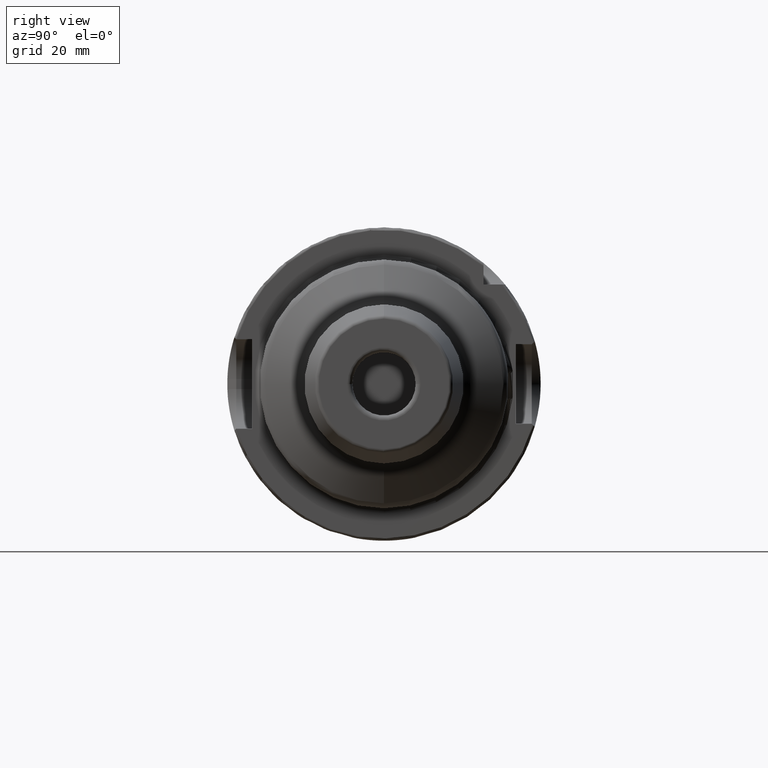
[diagram: clean part render]
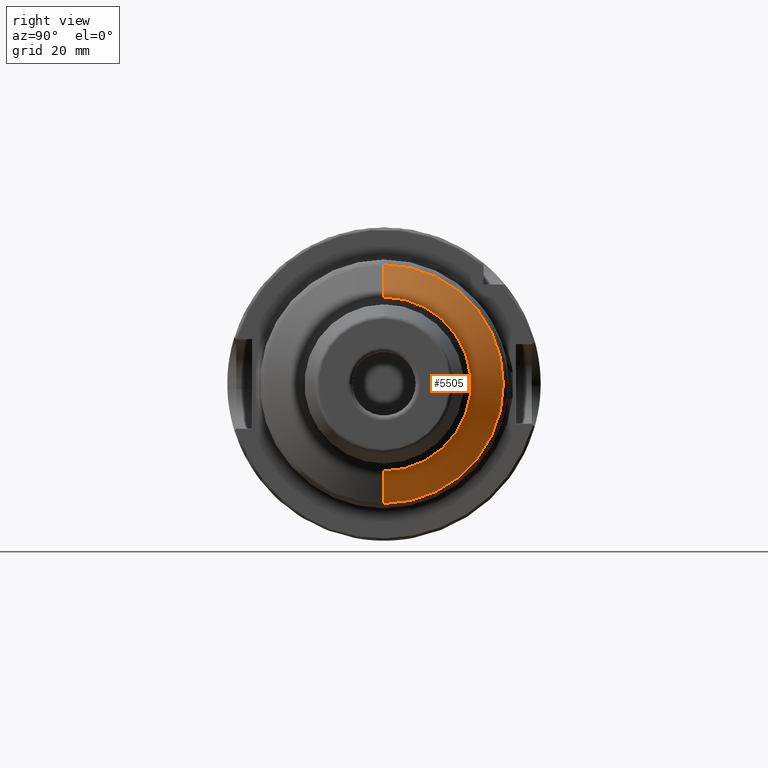
[diagram: same view with one face highlighted and labeled with its STEP entity id]
A machine part, right view. The second image highlights one B-rep face of the part: STEP entity #5505.
In plain terms, the highlighted conical surface has half-angle 60 deg.
Its self-contained STEP definition (entity closure, byte-faithful):
#2259=CARTESIAN_POINT('',(4.038119784648E1,0.E0,0.E0));
#2260=DIRECTION('',(-1.E0,0.E0,0.E0));
#2261=DIRECTION('',(0.E0,0.E0,1.E0));
#2262=AXIS2_PLACEMENT_3D('',#2259,#2260,#2261);
#2264=CARTESIAN_POINT('',(4.413397459622E1,0.E0,0.E0));
#2265=DIRECTION('',(1.E0,0.E0,0.E0));
#2266=DIRECTION('',(0.E0,0.E0,-1.E0));
#2267=AXIS2_PLACEMENT_3D('',#2264,#2265,#2266);
#2274=DIRECTION('',(-5.E-1,-3.805125372911E-12,8.660254037844E-1));
#2275=VECTOR('',#2274,7.505553499461E0);
#2276=CARTESIAN_POINT('',(4.413397459622E1,6.723743548565E-13,1.75E1));
#2277=LINE('',#2276,#2275);
#2283=DIRECTION('',(-5.E-1,3.805088633908E-12,-8.660254037844E-1));
#2284=VECTOR('',#2283,7.505553499461E0);
#2285=CARTESIAN_POINT('',(4.413397459622E1,-6.748391503364E-13,-1.75E1));
#2286=LINE('',#2285,#2284);
#2975=CARTESIAN_POINT('',(4.413397459622E1,0.E0,1.75E1));
#2976=CARTESIAN_POINT('',(4.413397459622E1,0.E0,-1.75E1));
#2977=VERTEX_POINT('',#2975);
#2978=VERTEX_POINT('',#2976);
#2987=CARTESIAN_POINT('',(4.038119784648E1,0.E0,2.4E1));
#2988=CARTESIAN_POINT('',(4.038119784648E1,0.E0,-2.4E1));
#2989=VERTEX_POINT('',#2987);
#2990=VERTEX_POINT('',#2988);
#5491=CARTESIAN_POINT('',(4.225758622135E1,0.E0,0.E0));
#5492=DIRECTION('',(-1.E0,0.E0,0.E0));
#5493=DIRECTION('',(0.E0,0.E0,-1.E0));
#5494=AXIS2_PLACEMENT_3D('',#5491,#5492,#5493);
#5495=CONICAL_SURFACE('',#5494,2.075E1,6.E1);
#5496=ORIENTED_EDGE('',*,*,#5485,.T.);
#5498=ORIENTED_EDGE('',*,*,#5497,.F.);
#5500=ORIENTED_EDGE('',*,*,#5499,.T.);
#5502=ORIENTED_EDGE('',*,*,#5501,.T.);
#5503=EDGE_LOOP('',(#5496,#5498,#5500,#5502));
#5504=FACE_OUTER_BOUND('',#5503,.F.);
#5505=ADVANCED_FACE('',(#5504),#5495,.T.);
#2263=CIRCLE('',#2262,2.4E1);
#2268=CIRCLE('',#2267,1.75E1);
#5485=EDGE_CURVE('',#2989,#2990,#2263,.T.);
#5497=EDGE_CURVE('',#2978,#2990,#2286,.T.);
#5499=EDGE_CURVE('',#2978,#2977,#2268,.T.);
#5501=EDGE_CURVE('',#2977,#2989,#2277,.T.);